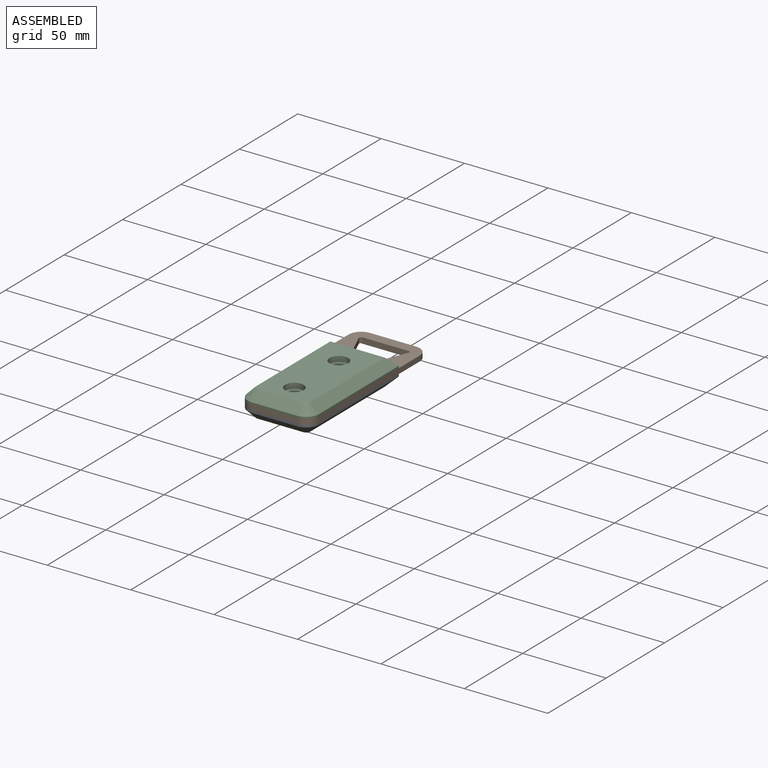
[diagram: assembled view]
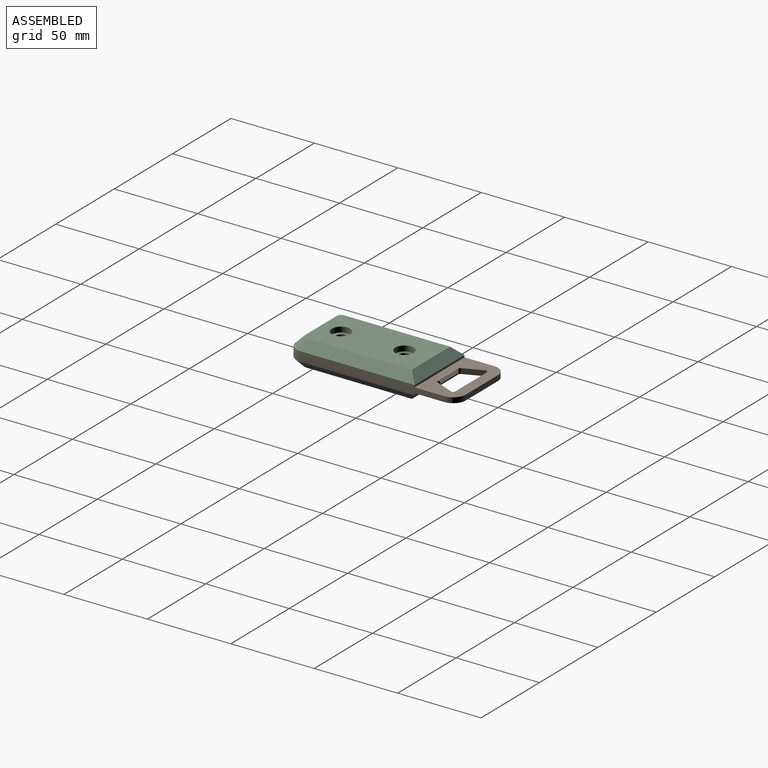
[diagram: assembled view, second angle]
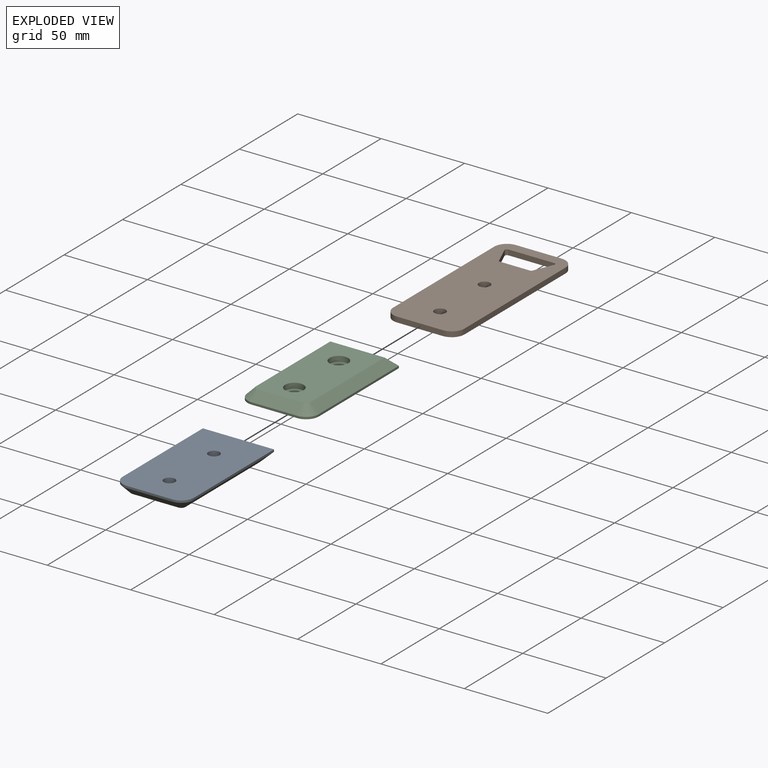
[diagram: exploded view]
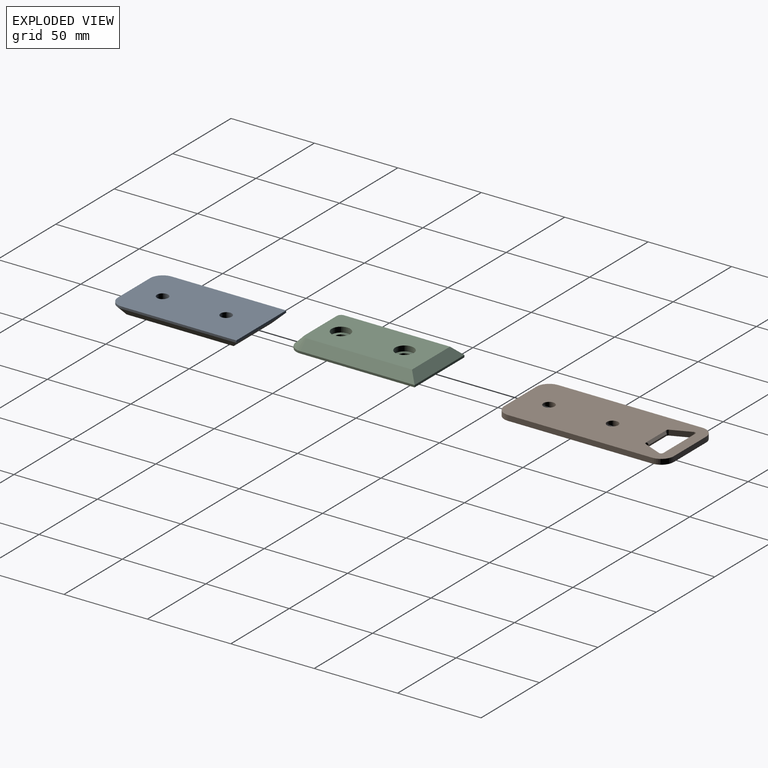
[diagram: exploded view, second angle]
ASSEMBLY  parts=3 mates=6
PART A: 20 faces, bbox 42.7x76.2x6.4 mm
  f0: plane 68.58x1.27mm, normal (-1,0,0), area 87.1mm2, adj f3,f5,f6,f13
  f1: plane 27.43x1.27mm, normal (0,-1,0), area 34.8mm2, adj f5,f6,f7,f9
  f2: plane 68.58x1.27mm, normal (1,0,0), area 87.1mm2, adj f3,f5,f7,f10
  f3: plane 42.67x1.27mm, normal (0,1,0), area 54.2mm2, adj f0,f2,f5,f12
  f4: plane 66.04x32.51mm, normal (0,0,1), area 1950.3mm2, adj f8,f9,f10,f11,f12,f13,f16,f19
  f5: plane 76.2x42.67mm, normal (0,0,-1), area 3155mm2, adj f0,f1,f2,f3,f6,f7,f14,f17
  f6: cylinder r=7.62mm len=7.62mm, axis (0,0,1), area 15.2mm2, adj f0,f1,f5,f11
  f7: cylinder r=7.62mm len=7.62mm, axis (0,0,-1), area 15.2mm2, adj f1,f2,f5,f8
  f8: cone r=2.54mm half-angle=45deg, axis (0,0,-1), area 57.3mm2, adj f4,f7,f9,f10
  f9: plane 27.43x5.08mm, normal (0,-0.71,0.71), area 197.1mm2, adj f1,f4,f8,f11
  f10: plane 68.58x5.08mm, normal (0.71,0,0.71), area 474.4mm2, adj f2,f4,f8,f12
  f11: cone r=2.54mm half-angle=45deg, axis (0,0,-1), area 57.3mm2, adj f4,f6,f9,f13
  f12: plane 42.67x5.08mm, normal (0,0.71,0.71), area 270.1mm2, adj f3,f4,f10,f13
  f13: plane 68.58x5.08mm, normal (-0.71,0,0.71), area 474.4mm2, adj f0,f4,f11,f12
  f14: cylinder r=3.38mm len=6.76mm, axis (0,0,1), area 67.4mm2, adj f5,f15
  f15: plane 11.11x11.11mm, normal (0,0,1), area 61.1mm2, adj f14,f16
  f16: cylinder r=5.56mm len=11.11mm, axis (0,0,1), area 110.8mm2, adj f4,f15
  f17: cylinder r=3.38mm len=6.76mm, axis (0,0,1), area 67.4mm2, adj f5,f18
  f18: plane 11.11x11.11mm, normal (0,0,1), area 61.1mm2, adj f17,f19
  f19: cylinder r=5.56mm len=11.11mm, axis (0,0,1), area 110.8mm2, adj f4,f18
PART B: 22 faces, bbox 42.7x101.6x3.2 mm
  f0: plane 27.43x3.18mm, normal (0,1,0), area 87.1mm2, adj f1,f15,f16,f17
  f1: cylinder r=7.62mm len=7.62mm, axis (0,0,-1), area 38mm2, adj f0,f2,f16,f17
  f2: plane 86.36x3.18mm, normal (-1,0,0), area 274.2mm2, adj f1,f3,f16,f17
  f3: cylinder r=7.62mm len=7.62mm, axis (0,0,-1), area 38mm2, adj f2,f4,f16,f17
  f4: plane 27.43x3.18mm, normal (0,-1,0), area 87.1mm2, adj f3,f5,f16,f17
  f5: cylinder r=7.62mm len=7.62mm, axis (0,0,-1), area 38mm2, adj f4,f6,f16,f17
  f6: plane 86.36x3.18mm, normal (1,0,0), area 274.2mm2, adj f5,f15,f16,f17
  f7: cylinder r=1.27mm len=3.18mm, axis (0,0,-1), area 7.9mm2, adj f8,f14,f16,f17
  f8: plane 27.43x3.18mm, normal (0,-1,0), area 87.1mm2, adj f7,f9,f16,f17
  f9: cylinder r=1.27mm len=3.18mm, axis (0,0,-1), area 7.9mm2, adj f8,f10,f16,f17
  f10: plane 11.43x4.83mm, normal (-0.92,0.39,0), area 39.4mm2, adj f9,f11,f16,f17
  f11: cylinder r=1.27mm len=3.18mm, axis (0,0,-1), area 9.2mm2, adj f10,f12,f16,f17,f18,f19
  f12: plane 15.24x0.64mm, normal (0,1,0), area 9.7mm2, adj f11,f13,f18,f19
  f13: cylinder r=1.27mm len=3.18mm, axis (0,0,-1), area 9.2mm2, adj f12,f14,f16,f17,f18,f19
  f14: plane 11.43x4.83mm, normal (0.92,0.39,0), area 39.4mm2, adj f7,f13,f16,f17
  f15: cylinder r=7.62mm len=7.62mm, axis (0,0,-1), area 38mm2, adj f0,f6,f16,f17
  f16: plane 101.6x42.67mm, normal (0,0,1), area 3861.5mm2, adj f0,f1,f2,f3,f4,f5,f6,f7
  f17: plane 101.6x42.67mm, normal (0,0,-1), area 3861.5mm2, adj f0,f1,f2,f3,f4,f5,f6,f7
  f18: plane 17.78x1.27mm, normal (0,0.71,-0.71), area 28.4mm2, adj f11,f12,f13,f17
  f19: plane 17.78x1.27mm, normal (0,0.71,0.71), area 28.4mm2, adj f11,f12,f13,f16
  f20: cylinder r=3.38mm len=6.76mm, axis (0,0,1), area 67.4mm2, adj f16,f17
  f21: cylinder r=3.38mm len=6.76mm, axis (0,0,1), area 67.4mm2, adj f16,f17
PART C: same geometry as A
PLACE A rot(axis=(0,1,0),180deg) t=(-26.06,-59.34,36.82)mm
PLACE B t=(-68.73,-59.34,36.82)mm
PLACE C t=(-68.73,-59.34,39.99)mm
MATE planar A.f1 <-> B.f4  axis (0,-1,0) through (-47.39,-59.34,36.18)mm
MATE planar B.f6 <-> C.f2  axis (1,0,0) through (-26.06,-8.54,38.41)mm
MATE planar A.f0 <-> B.f6  axis (1,0,0) through (-26.06,-17.43,36.18)mm
MATE planar B.f16 <-> C.f6  axis (0,0,1) through (-47.39,-11.73,39.99)mm
MATE planar C.f1 <-> B.f4  axis (0,-1,0) through (-47.39,-59.34,40.63)mm
MATE planar A.f5 <-> B.f17  axis (0,0,1) through (-47.39,-20.91,36.82)mm
